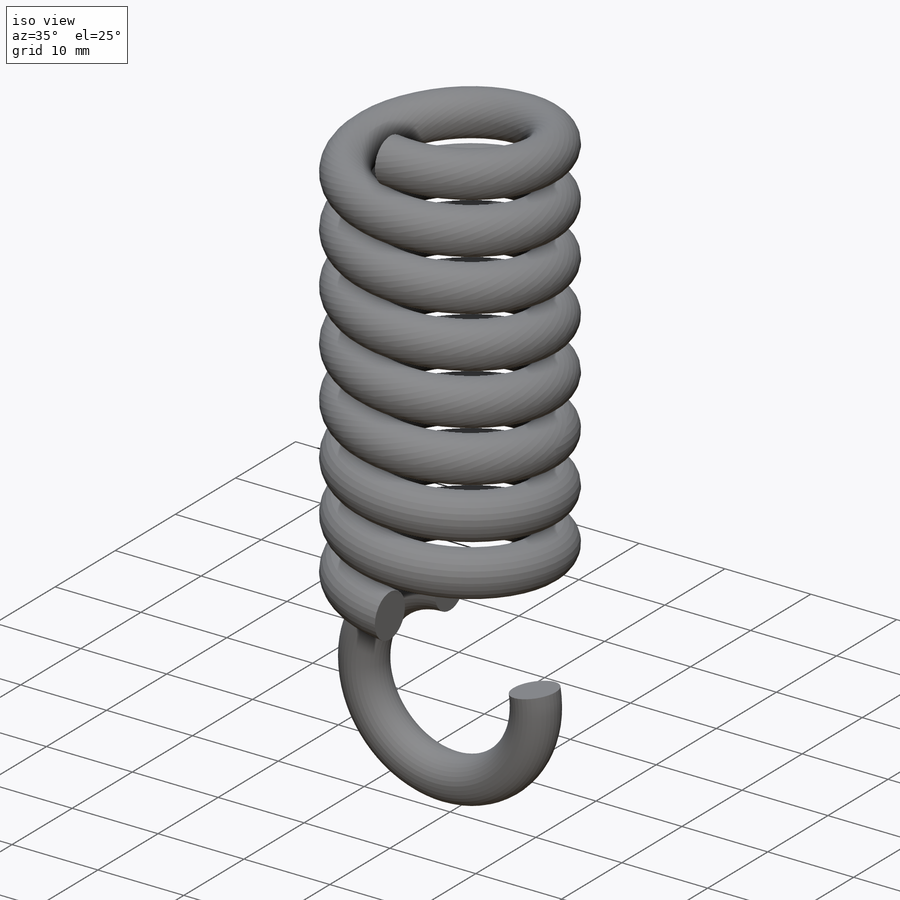
[diagram: iso view]
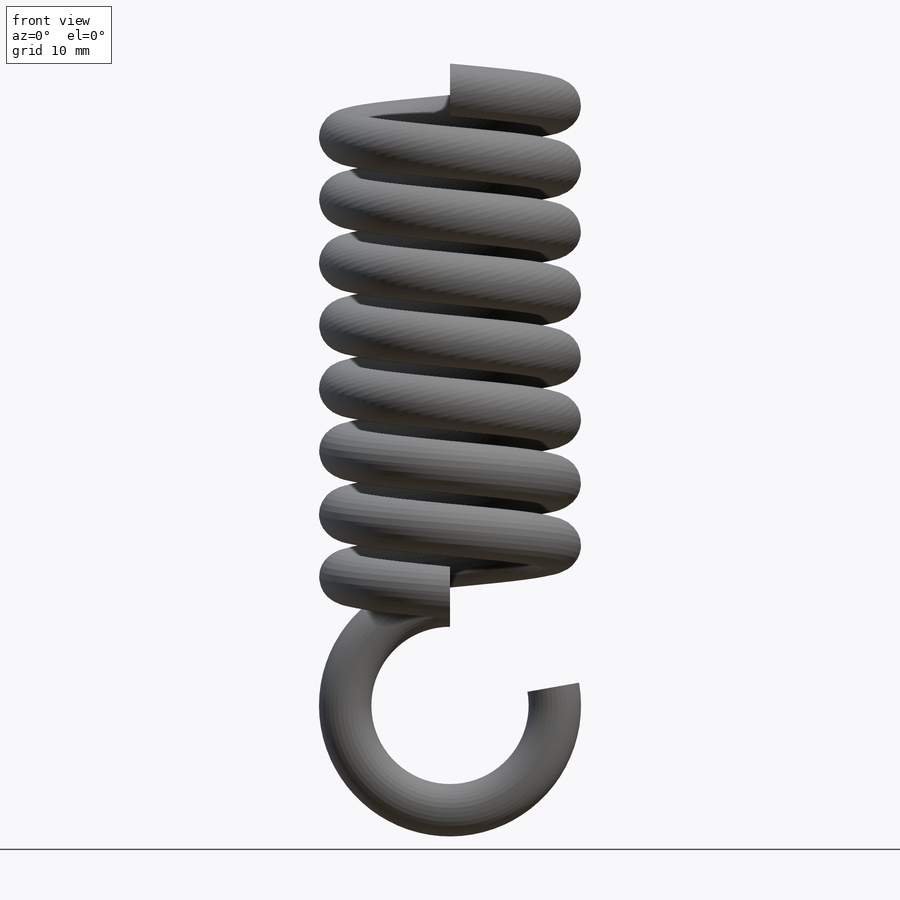
[diagram: front view]
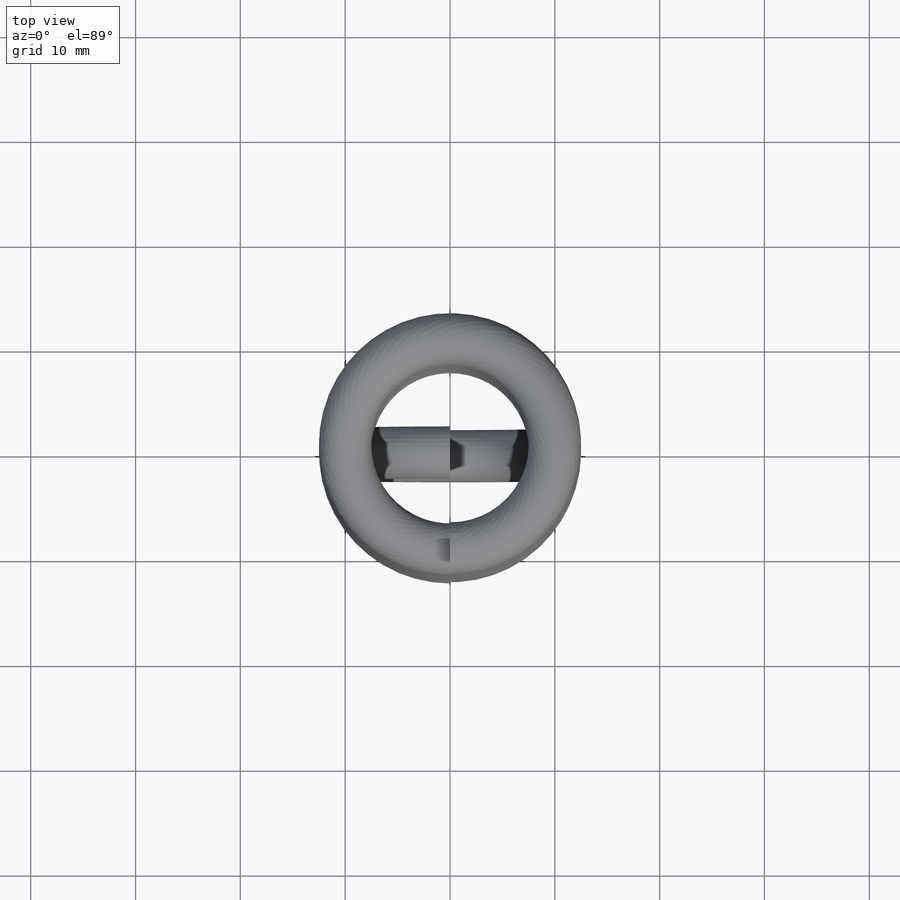
[diagram: top view]
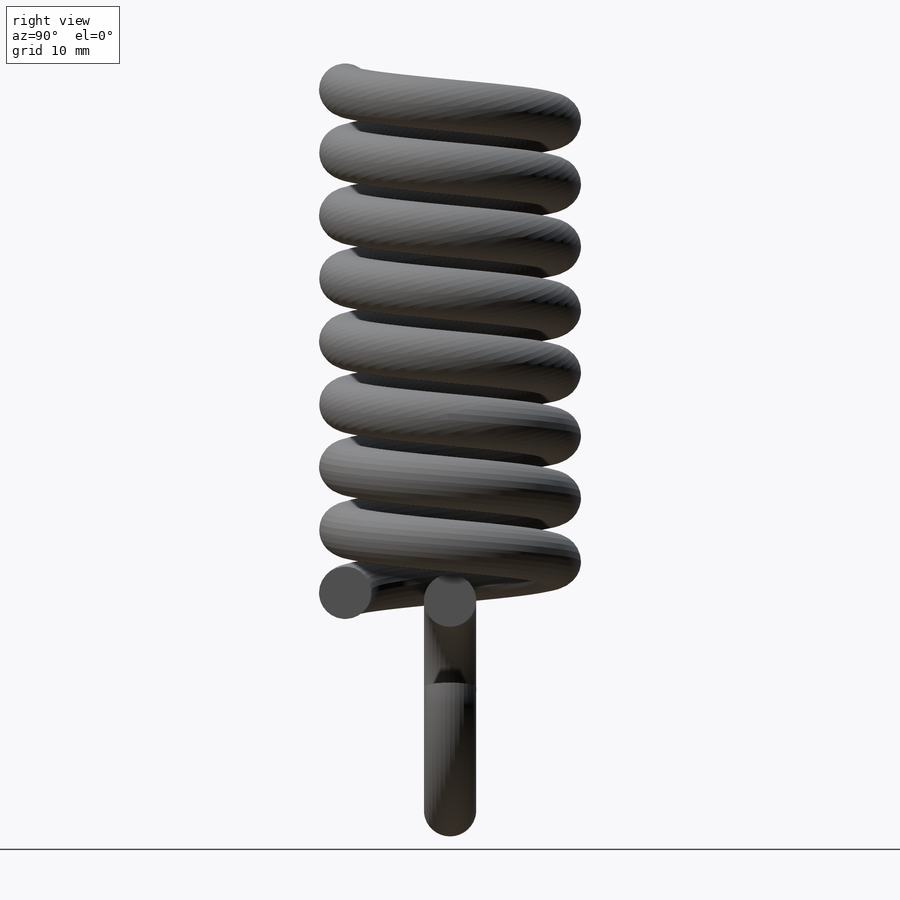
[diagram: right view]
SOLIDWORKS PART (.sldprt)
format: sldprt  version: not decoded by parser v0  size: 535,552 bytes
history: native  units: mm
features: sketch x6, plane x3, sweep x2, material x1, helix x1 (+9 scaffold rows collapsed)
feature tree (22):
  scaffold x9  (default folders/planes/origin — collapsed)
  material  "材质 <未指定>"
  plane  "前视基准面"
  plane  "上视基准面"
  plane  "右视基准面"
  sketch  "草图1"  dims[c1.D1=~5.072686mm c1.D2=5.0mm c2.D1=10.0mm]
  sketch  "草图2"  dims[D1=~10.011624mm]
  helix  "螺旋线/涡状线1"  Pitch=48mm
  sweep  "扫描1"
  sketch  "草图5"  dims[D1=~2.235659mm]
  sketch  "草图6"  dims[c1.D1=~13.842591mm c2.D1=110.0deg]
  sweep  "扫描2"
  sketch  "草图9"  dims[D1=~2.565594mm]
  sketch  "草图11"
decode coverage: 6 of 9 modeling features carry decoded parameters
note: ~ marks probable driven/reference dimensions
note: suppression state not decoded; provenance and decode notes live in map.json
